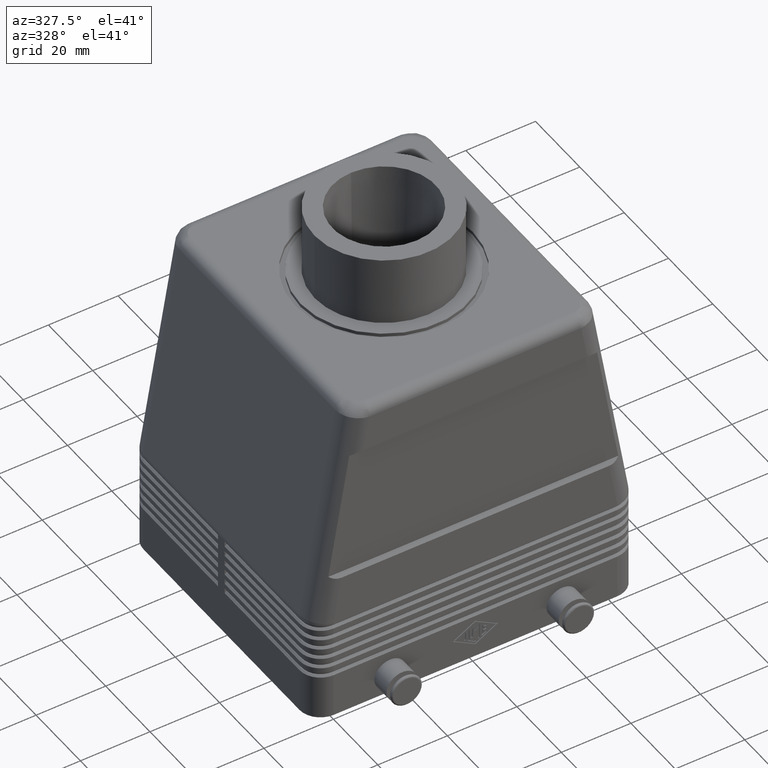
[diagram: clean part render]
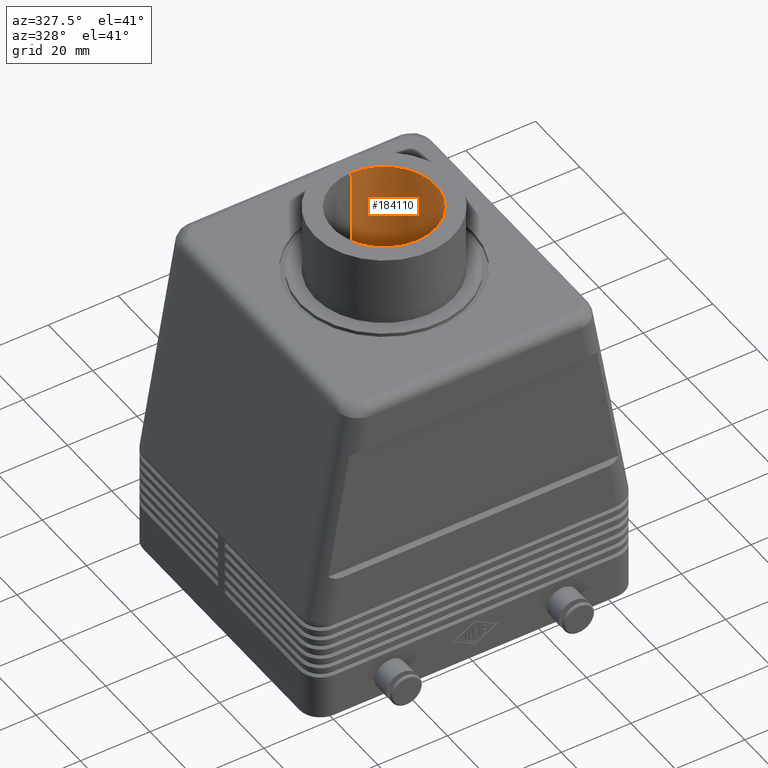
[diagram: same view with one face highlighted and labeled with its STEP entity id]
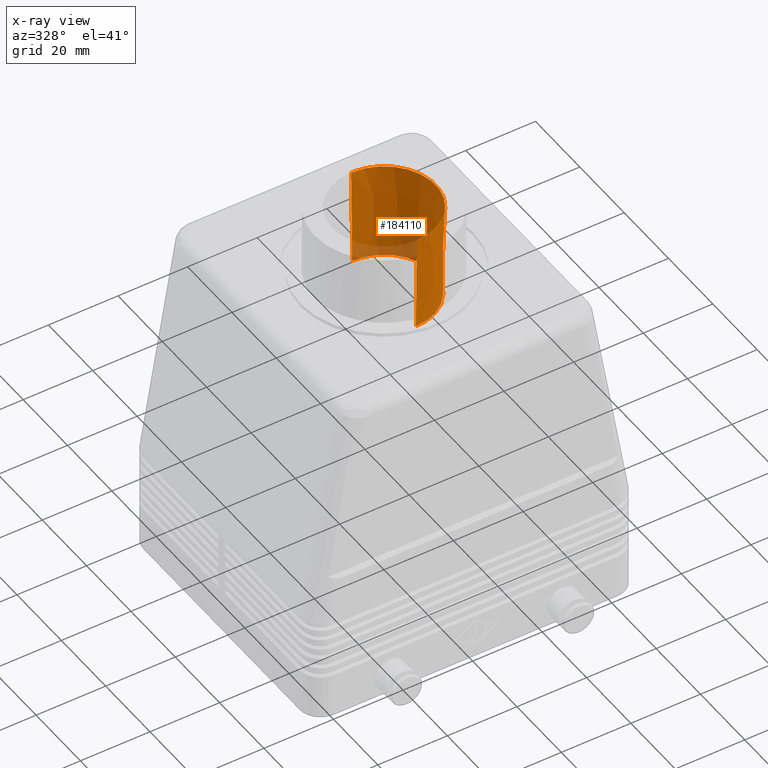
[diagram: x-ray of the same camera — body ghosted, the highlighted face saturated]
A machine part, auxiliary view. The second image highlights one B-rep face of the part: STEP entity #184110.
The next image is the same camera in x-ray: the body ghosted, the highlighted face saturated — about 9% of this face is hidden behind the body in this view.
In plain terms, the highlighted conical surface has half-angle 1 deg.
Its self-contained STEP definition (entity closure, byte-faithful):
#55010=CARTESIAN_POINT('',(-3.10862446895044E-15,3.5527136788005E-15,
114.));
#55020=DIRECTION('',(0.,0.,1.));
#55030=DIRECTION('',(0.,1.,0.));
#55040=AXIS2_PLACEMENT_3D('',#55010,#55020,#55030);
#55050=CIRCLE('',#55040,14.85);
#55060=CARTESIAN_POINT('',(-3.10862446895044E-15,14.85,114.));
#55070=VERTEX_POINT('',#55060);
#55080=CARTESIAN_POINT('',(-4.92722496568426E-15,-14.85,114.));
#55090=VERTEX_POINT('',#55080);
#55120=EDGE_CURVE('',#55090,#55070,#55050,.T.);
#56600=CARTESIAN_POINT('',(-3.10862446895044E-15,3.5527136788005E-15,86.
));
#56610=DIRECTION('',(0.,0.,1.));
#56620=DIRECTION('',(0.,1.,0.));
#56630=AXIS2_PLACEMENT_3D('',#56600,#56610,#56620);
#56640=CIRCLE('',#56630,14.3612581820099);
#56650=CARTESIAN_POINT('',(-3.10862446895044E-15,14.3612581820099,86.));
#56660=VERTEX_POINT('',#56650);
#56670=CARTESIAN_POINT('',(-4.86737135538316E-15,-14.3612581820099,86.))
;
#56680=VERTEX_POINT('',#56670);
#56710=EDGE_CURVE('',#56680,#56660,#56640,.T.);
#183900=CARTESIAN_POINT('',(-3.10862446895044E-15,3.5527136788005E-15,
114.));
#183910=DIRECTION('',(0.,0.,1.));
#183920=DIRECTION('',(0.,1.,0.));
#183930=AXIS2_PLACEMENT_3D('',#183900,#183910,#183920);
#183940=CONICAL_SURFACE('',#183930,14.85,0.0174532925199433);
#183950=CARTESIAN_POINT('',(-3.10862446895044E-15,14.85,114.));
#183960=DIRECTION('',(0.,0.0174524064372835,0.999847695156391));
#183970=VECTOR('',#183960,850.88552420347);
#183980=LINE('',#183950,#183970);
#183990=EDGE_CURVE('',#56660,#55070,#183980,.T.);
#184000=ORIENTED_EDGE('',*,*,#183990,.F.);
#184010=ORIENTED_EDGE('',*,*,#55120,.T.);
#184020=CARTESIAN_POINT('',(-4.92722496568426E-15,-14.85,114.));
#184030=DIRECTION('',(-2.13730336808379E-18,-0.0174524064372835,
0.999847695156391));
#184040=VECTOR('',#184030,850.88552420347);
#184050=LINE('',#184020,#184040);
#184060=EDGE_CURVE('',#56680,#55090,#184050,.T.);
#184070=ORIENTED_EDGE('',*,*,#184060,.T.);
#184080=ORIENTED_EDGE('',*,*,#56710,.F.);
#184090=EDGE_LOOP('',(#184080,#184070,#184010,#184000));
#184100=FACE_OUTER_BOUND('',#184090,.T.);
#184110=ADVANCED_FACE('',(#184100),#183940,.F.);